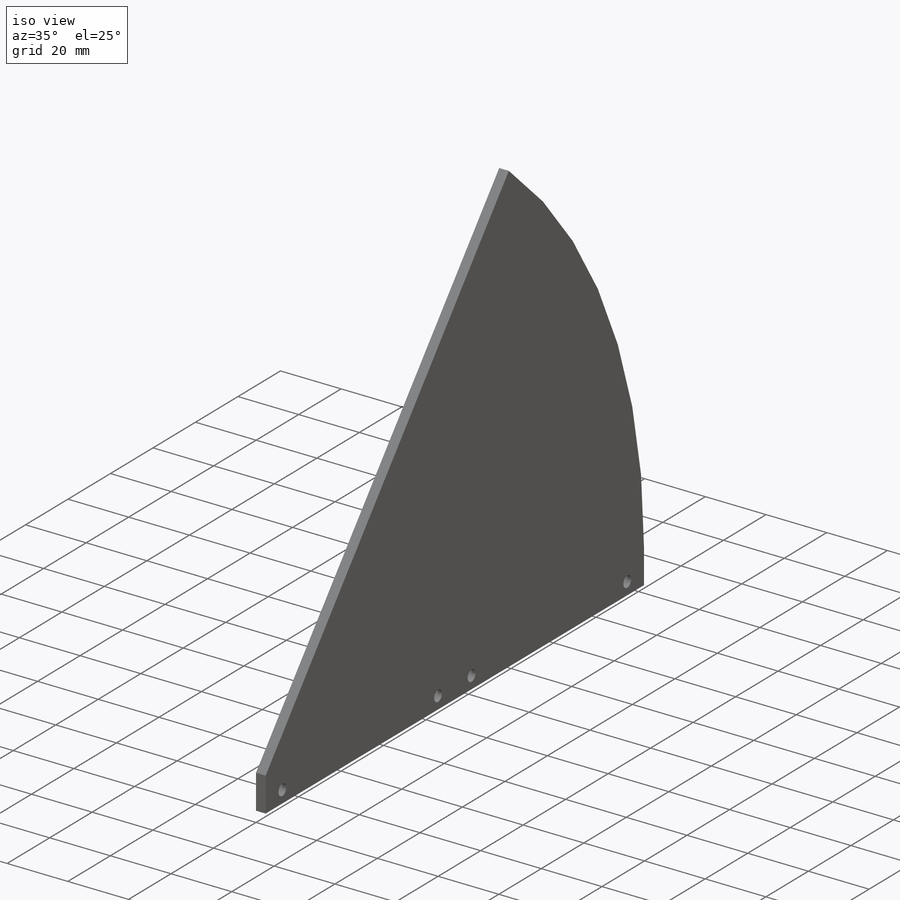
[diagram: iso view]
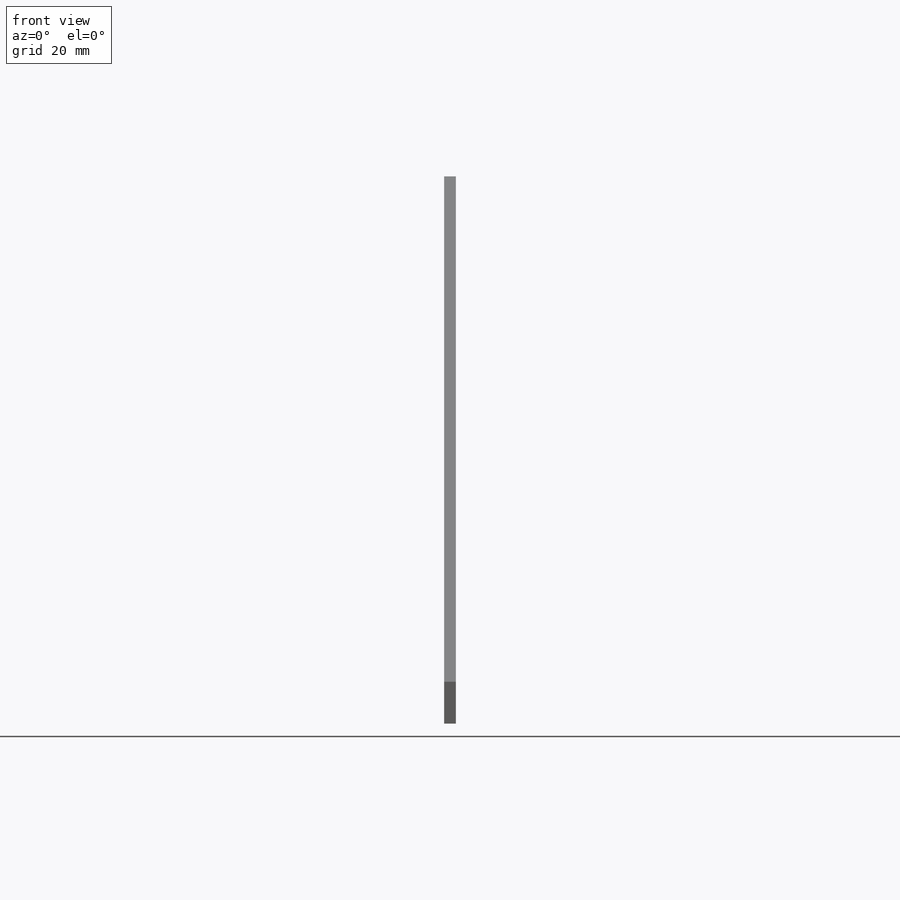
[diagram: front view]
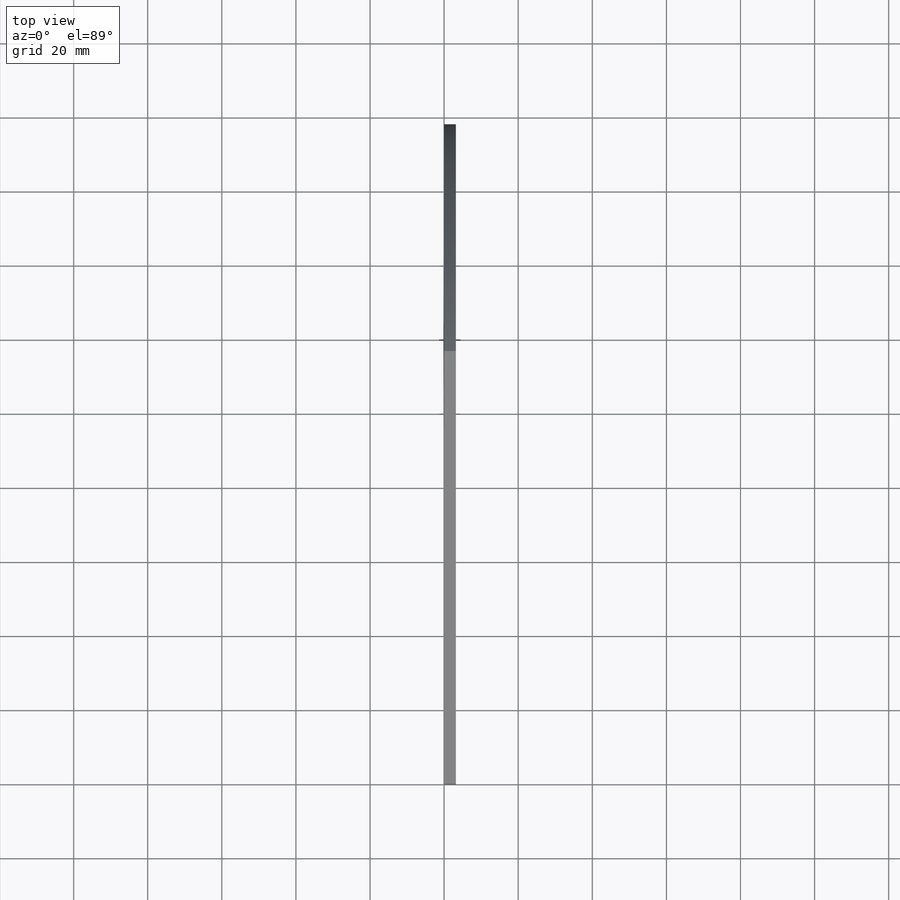
[diagram: top view]
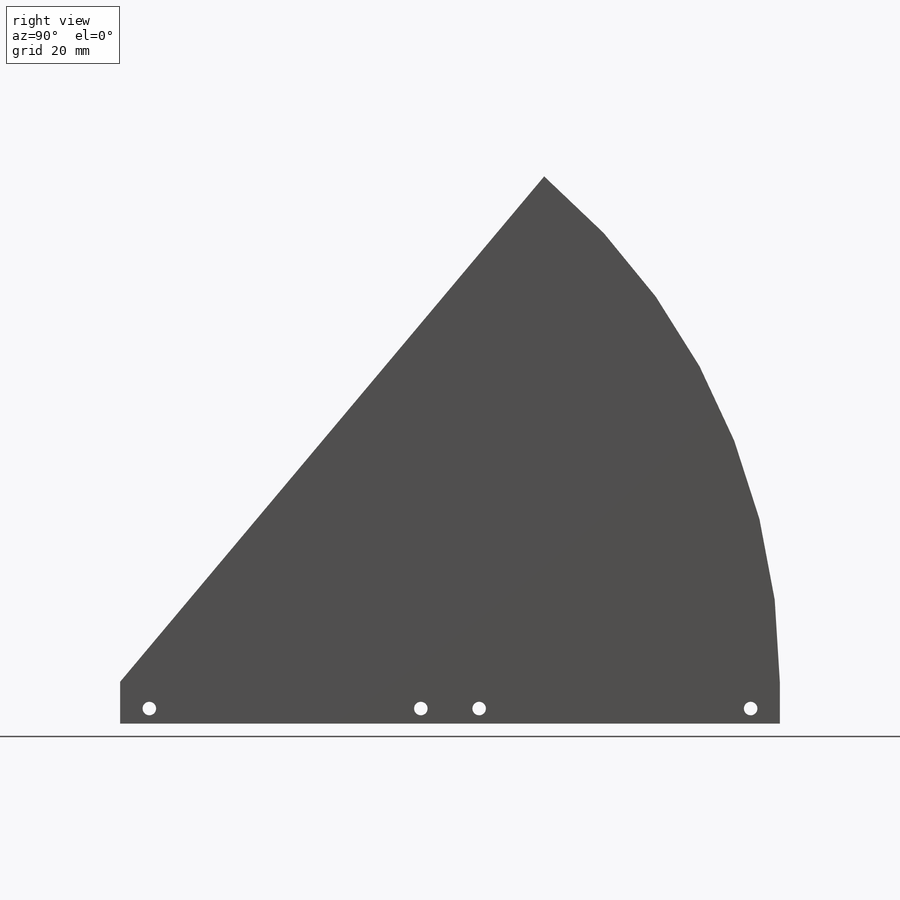
[diagram: right view]
SOLIDWORKS PART (.sldprt)
format: sldprt  version: not decoded by parser v0  size: 249,856 bytes
history: native  units: mm
features: sketch x6, extrude x3, cut_extrude x3, material x1 (+12 scaffold rows collapsed)
feature tree (25):
  scaffold x12  (default folders/planes/origin — collapsed)
  material  "Material <not specified>"
  sketch  "Sketch1"  dims[c1.D1=356.108mm c1.D2=178.054mm c2.D2=50.0deg]
  extrude  "Boss-Extrude1"  Depth=3.175mm
  sketch  "Sketch2"  dims[D1=178.054mm D2=3.175mm]
  extrude  "Boss-Extrude2"  Depth=11.303mm
  sketch  "Sketch3"  dims[D5=3.6576mm D6=3.6576mm D1=7.874mm D2=4.064mm D3=7.874mm D4=4.064mm]
  cut_extrude  "Cut-Extrude1"  [1 undecoded]
  sketch  "Sketch6"  dims[c1.D1=330.2mm c1.D2=330.2mm c1.D5=~1.723329mm c2.D2=3.175mm c2.D3=~119.885521mm c3.D3=2.0deg c3.D4=~2.622426mm c4.D3=1.27mm c4.D4=1.27mm c4.D5=~17.788381mm]
  cut_extrude  "Cut-Extrude2"  Depth=3.175mm
  sketch  "Sketch7"  dims[D1=~11.337409mm]
  extrude  "Boss-Extrude3"  Depth=0.635mm
  sketch  "Sketch8"  dims[D1=6.6548mm D2=6.6548mm D3=6.6548mm D4=6.6548mm]
  cut_extrude  "Cut-Extrude3"  Depth=1.8542mm
decode coverage: 11 of 12 modeling features carry decoded parameters
note: ~ marks probable driven/reference dimensions
note: 1 parameter value undecoded
note: suppression state not decoded; provenance and decode notes live in map.json
